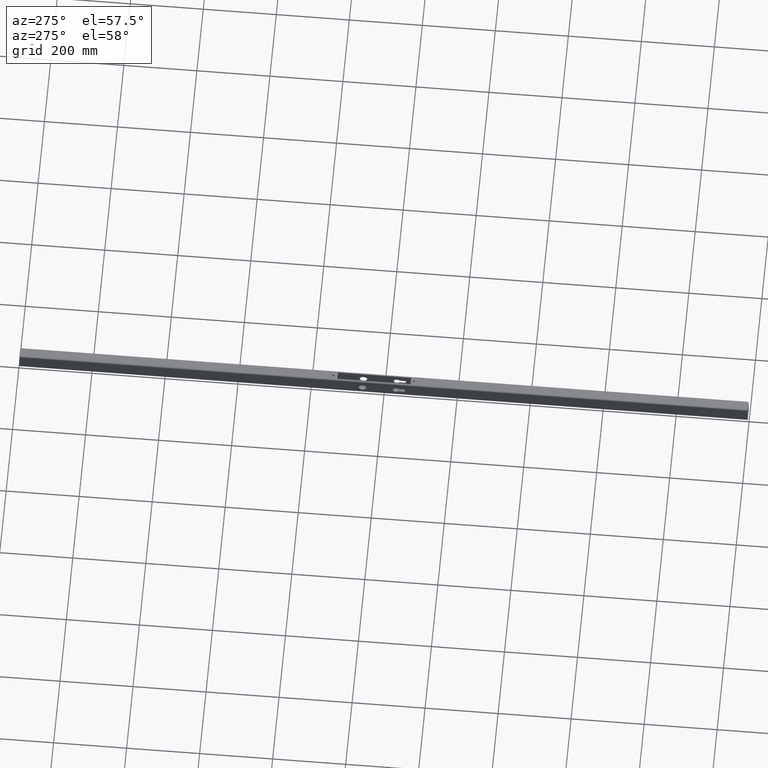
[diagram: clean part render]
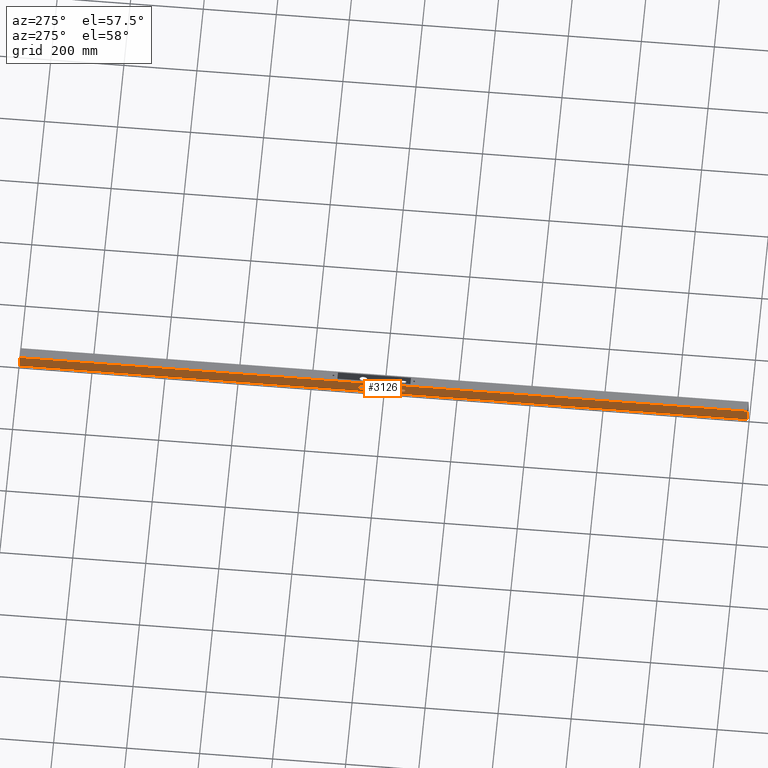
[diagram: same view with one face highlighted and labeled with its STEP entity id]
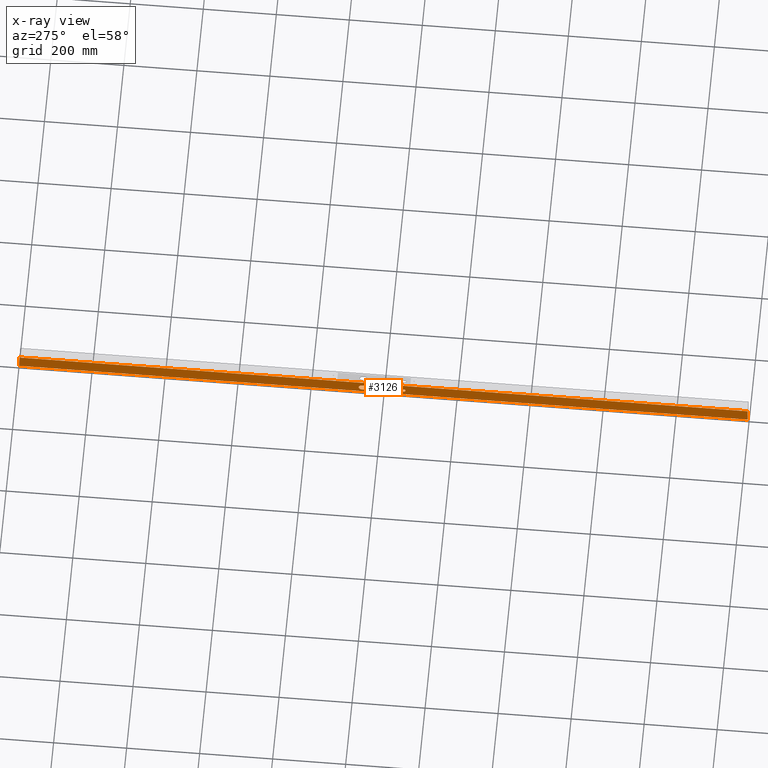
[diagram: x-ray of the same camera — body ghosted, the highlighted face saturated]
A machine part, auxiliary view. The second image highlights one B-rep face of the part: STEP entity #3126.
The next image is the same camera in x-ray: the body ghosted, the highlighted face saturated — about 0% of this face is hidden behind the body in this view.
In plain terms, the highlighted planar face has unit normal (1, 0, -0).
Its self-contained STEP definition (entity closure, byte-faithful):
#39 = DIRECTION ( 'NONE',  ( 1.000000000000000000, 0.000000000000000000, 0.000000000000000000 ) ) ;
#57 = VECTOR ( 'NONE', #9026, 1000.000000000000000 ) ;
#123 = VERTEX_POINT ( 'NONE', #5628 ) ;
#219 = CIRCLE ( 'NONE', #6810, 5.650000000000002132 ) ;
#333 = DIRECTION ( 'NONE',  ( 0.000000000000000000, 0.000000000000000000, -1.000000000000000000 ) ) ;
#569 = VERTEX_POINT ( 'NONE', #12575 ) ;
#595 = DIRECTION ( 'NONE',  ( 1.000000000000000000, 0.000000000000000000, 0.000000000000000000 ) ) ;
#837 = VECTOR ( 'NONE', #6782, 1000.000000000000000 ) ;
#856 = FACE_BOUND ( 'NONE', #9113, .T. ) ;
#918 = AXIS2_PLACEMENT_3D ( 'NONE', #1064, #8027, #11958 ) ;
#939 = VERTEX_POINT ( 'NONE', #1529 ) ;
#1064 = CARTESIAN_POINT ( 'NONE',  ( -15.00000000000000355, 997.5000000000000000, -21.00000000000001066 ) ) ;
#1124 = DIRECTION ( 'NONE',  ( -0.000000000000000000, 1.000000000000000000, 2.668235101928752824E-16 ) ) ;
#1228 = EDGE_CURVE ( 'NONE', #123, #123, #11844, .T. ) ;
#1438 = VECTOR ( 'NONE', #7087, 1000.000000000000000 ) ;
#1529 = CARTESIAN_POINT ( 'NONE',  ( -15.00000000000000355, -997.5000000000000000, -21.00000000000001066 ) ) ;
#1911 = LINE ( 'NONE', #5957, #837 ) ;
#2158 = EDGE_CURVE ( 'NONE', #5170, #12810, #1911, .T. ) ;
#2379 = LINE ( 'NONE', #7123, #12594 ) ;
#2644 = LINE ( 'NONE', #2958, #57 ) ;
#2688 = CARTESIAN_POINT ( 'NONE',  ( -15.00000000000000355, -54.69999999999989626, 3.149999999999995470 ) ) ;
#2801 = ORIENTED_EDGE ( 'NONE', *, *, #10673, .T. ) ;
#2864 = DIRECTION ( 'NONE',  ( 0.000000000000000000, 0.000000000000000000, -1.000000000000000000 ) ) ;
#2929 = PLANE ( 'NONE',  #918 ) ;
#2958 = CARTESIAN_POINT ( 'NONE',  ( -15.00000000000000355, -997.5000000000000000, -21.00000000000001066 ) ) ;
#3038 = AXIS2_PLACEMENT_3D ( 'NONE', #9826, #39, #2864 ) ;
#3126 = ADVANCED_FACE ( 'NONE', ( #856, #5053, #7535 ), #2929, .F. ) ;
#3233 = EDGE_CURVE ( 'NONE', #8570, #939, #9358, .T. ) ;
#3552 = CARTESIAN_POINT ( 'NONE',  ( -15.00000000000000355, -54.69999999999989626, -2.500000000000005773 ) ) ;
#3763 = CARTESIAN_POINT ( 'NONE',  ( -15.00000000000000355, -54.69999999999989626, -8.150000000000007461 ) ) ;
#4046 = VERTEX_POINT ( 'NONE', #12120 ) ;
#4074 = CIRCLE ( 'NONE', #3038, 9.149999999999998579 ) ;
#4239 = DIRECTION ( 'NONE',  ( -0.000000000000000000, -1.000000000000000000, -0.000000000000000000 ) ) ;
#4341 = VECTOR ( 'NONE', #4691, 1000.000000000000000 ) ;
#4691 = DIRECTION ( 'NONE',  ( -0.000000000000000000, -1.000000000000000000, 6.670587754821882060E-17 ) ) ;
#4756 = EDGE_LOOP ( 'NONE', ( #10602 ) ) ;
#4951 = VERTEX_POINT ( 'NONE', #9419 ) ;
#5053 = FACE_BOUND ( 'NONE', #4756, .T. ) ;
#5170 = VERTEX_POINT ( 'NONE', #11820 ) ;
#5628 = CARTESIAN_POINT ( 'NONE',  ( -15.00000000000000355, 57.50000000000010658, -13.00000000000001243 ) ) ;
#5904 = AXIS2_PLACEMENT_3D ( 'NONE', #12227, #12279, #333 ) ;
#5957 = CARTESIAN_POINT ( 'NONE',  ( -14.99999999999999645, 997.5000000000000000, 20.99999999999999289 ) ) ;
#6036 = CARTESIAN_POINT ( 'NONE',  ( -15.00000000000000355, 997.5000000000000000, -21.00000000000001066 ) ) ;
#6156 = EDGE_CURVE ( 'NONE', #569, #4046, #9941, .T. ) ;
#6179 = EDGE_CURVE ( 'NONE', #939, #12810, #2644, .T. ) ;
#6604 = LINE ( 'NONE', #12002, #1438 ) ;
#6690 = ORIENTED_EDGE ( 'NONE', *, *, #10434, .T. ) ;
#6772 = VECTOR ( 'NONE', #4239, 1000.000000000000000 ) ;
#6782 = DIRECTION ( 'NONE',  ( -0.000000000000000000, -1.000000000000000000, -0.000000000000000000 ) ) ;
#6810 = AXIS2_PLACEMENT_3D ( 'NONE', #3552, #595, #8677 ) ;
#6965 = ORIENTED_EDGE ( 'NONE', *, *, #6179, .T. ) ;
#7087 = DIRECTION ( 'NONE',  ( 1.652117596168387263E-16, 0.000000000000000000, 1.000000000000000000 ) ) ;
#7123 = CARTESIAN_POINT ( 'NONE',  ( -15.00000000000000355, -41.69722168617852276, -8.150000000000003908 ) ) ;
#7278 = EDGE_CURVE ( 'NONE', #8570, #5170, #6604, .T. ) ;
#7535 = FACE_OUTER_BOUND ( 'NONE', #10632, .T. ) ;
#8027 = DIRECTION ( 'NONE',  ( 1.000000000000000000, 0.000000000000000000, -1.652117596168387263E-16 ) ) ;
#8416 = VERTEX_POINT ( 'NONE', #3763 ) ;
#8544 = EDGE_CURVE ( 'NONE', #8416, #4951, #2379, .T. ) ;
#8570 = VERTEX_POINT ( 'NONE', #10980 ) ;
#8677 = DIRECTION ( 'NONE',  ( 0.000000000000000000, 0.000000000000000000, -1.000000000000000000 ) ) ;
#8948 = ORIENTED_EDGE ( 'NONE', *, *, #3233, .T. ) ;
#9026 = DIRECTION ( 'NONE',  ( 1.652117596168387263E-16, 0.000000000000000000, 1.000000000000000000 ) ) ;
#9113 = EDGE_LOOP ( 'NONE', ( #9839, #6690, #11065, #2801 ) ) ;
#9358 = LINE ( 'NONE', #6036, #6772 ) ;
#9419 = CARTESIAN_POINT ( 'NONE',  ( -15.00000000000000178, -41.69722168617839486, -8.150000000000003908 ) ) ;
#9522 = ORIENTED_EDGE ( 'NONE', *, *, #2158, .F. ) ;
#9826 = CARTESIAN_POINT ( 'NONE',  ( -15.00000000000000355, -34.49999999999989342, -2.500000000000005773 ) ) ;
#9839 = ORIENTED_EDGE ( 'NONE', *, *, #6156, .T. ) ;
#9941 = LINE ( 'NONE', #2688, #4341 ) ;
#10434 = EDGE_CURVE ( 'NONE', #4046, #8416, #219, .T. ) ;
#10473 = CARTESIAN_POINT ( 'NONE',  ( -14.99999999999999645, -997.5000000000000000, 20.99999999999999289 ) ) ;
#10602 = ORIENTED_EDGE ( 'NONE', *, *, #1228, .T. ) ;
#10632 = EDGE_LOOP ( 'NONE', ( #6965, #9522, #12484, #8948 ) ) ;
#10673 = EDGE_CURVE ( 'NONE', #4951, #569, #4074, .T. ) ;
#10980 = CARTESIAN_POINT ( 'NONE',  ( -15.00000000000000355, 997.5000000000000000, -21.00000000000001066 ) ) ;
#11065 = ORIENTED_EDGE ( 'NONE', *, *, #8544, .T. ) ;
#11820 = CARTESIAN_POINT ( 'NONE',  ( -14.99999999999999645, 997.5000000000000000, 20.99999999999999289 ) ) ;
#11844 = CIRCLE ( 'NONE', #5904, 10.50000000000000711 ) ;
#11958 = DIRECTION ( 'NONE',  ( -1.652117596168387263E-16, 0.000000000000000000, -1.000000000000000000 ) ) ;
#12002 = CARTESIAN_POINT ( 'NONE',  ( -15.00000000000000355, 997.5000000000000000, -21.00000000000001066 ) ) ;
#12120 = CARTESIAN_POINT ( 'NONE',  ( -15.00000000000000355, -54.69999999999989626, 3.149999999999995470 ) ) ;
#12227 = CARTESIAN_POINT ( 'NONE',  ( -15.00000000000000355, 57.50000000000010658, -2.500000000000005773 ) ) ;
#12279 = DIRECTION ( 'NONE',  ( 1.000000000000000000, 0.000000000000000000, 0.000000000000000000 ) ) ;
#12484 = ORIENTED_EDGE ( 'NONE', *, *, #7278, .F. ) ;
#12575 = CARTESIAN_POINT ( 'NONE',  ( -15.00000000000000355, -41.69722168617852276, 3.149999999999995026 ) ) ;
#12594 = VECTOR ( 'NONE', #1124, 1000.000000000000000 ) ;
#12810 = VERTEX_POINT ( 'NONE', #10473 ) ;